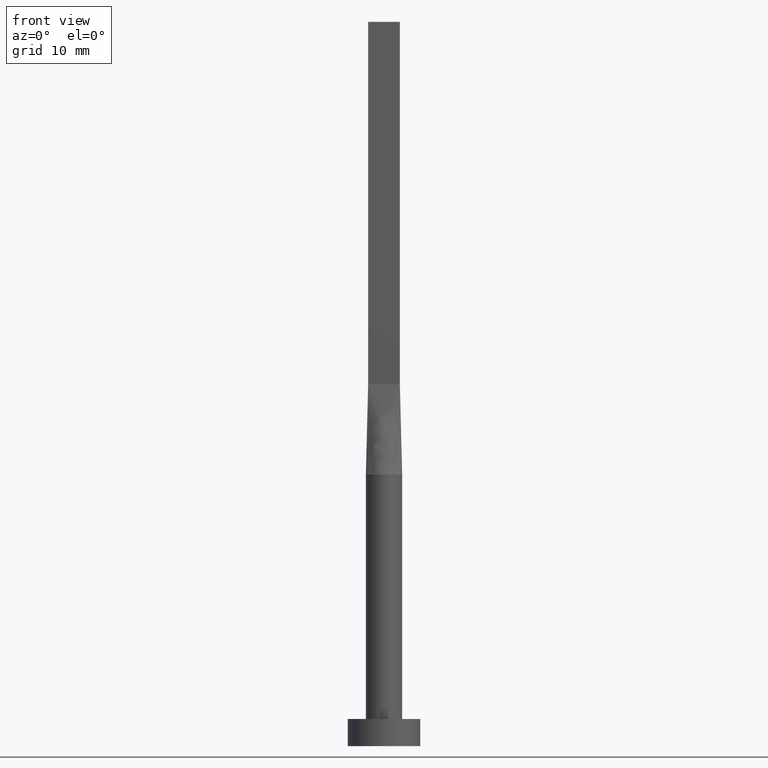
[diagram: clean part render]
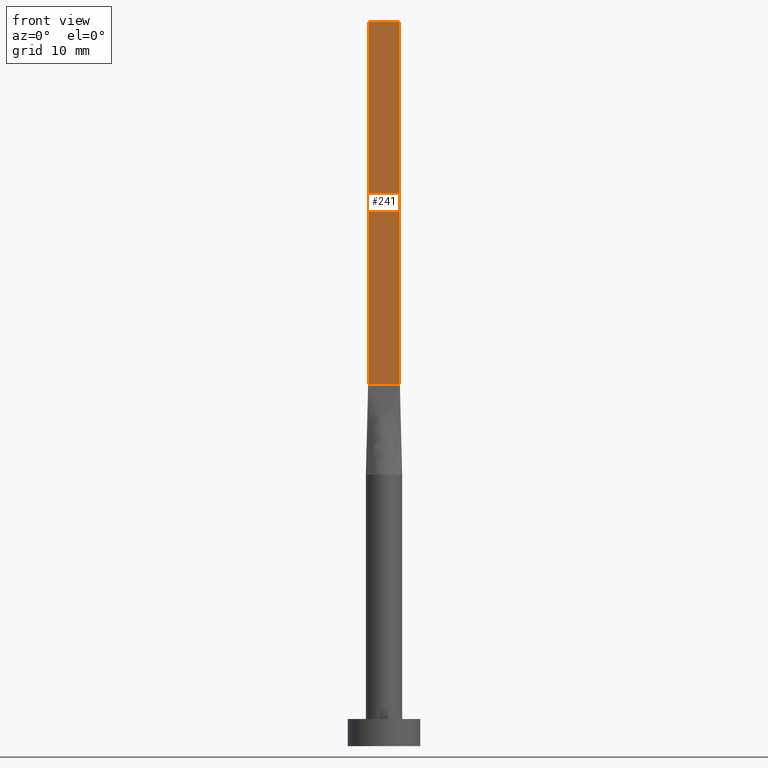
[diagram: same view with one face highlighted and labeled with its STEP entity id]
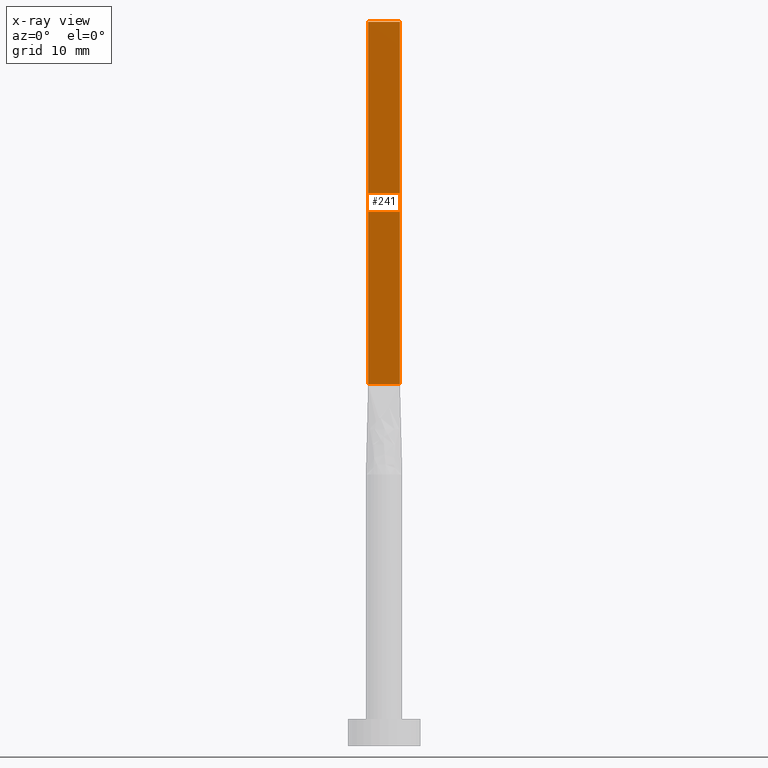
[diagram: x-ray of the same camera — body ghosted, the highlighted face saturated]
A machine part, front view. The second image highlights one B-rep face of the part: STEP entity #241.
The next image is the same camera in x-ray: the body ghosted, the highlighted face saturated — about 0% of this face is hidden behind the body in this view.
In plain terms, the highlighted planar face has unit normal (0, 1, -0).
Its self-contained STEP definition (entity closure, byte-faithful):
#17 = EDGE_CURVE ( 'NONE', #19, #537, #539, .T. ) ;
#19 = VERTEX_POINT ( 'NONE', #126 ) ;
#33 = DIRECTION ( 'NONE',  ( -0.000000000000000000, -0.000000000000000000, -1.000000000000000000 ) ) ;
#37 = DIRECTION ( 'NONE',  ( -0.000000000000000000, -0.000000000000000000, -1.000000000000000000 ) ) ;
#51 = CARTESIAN_POINT ( 'NONE',  ( -1.750000000000000000, -0.4999999999999995559, 40.00000000000000000 ) ) ;
#55 = DIRECTION ( 'NONE',  ( -1.000000000000000000, 6.195440985631454085E-17, 0.000000000000000000 ) ) ;
#76 = CARTESIAN_POINT ( 'NONE',  ( 1.750000000000000000, -0.4999999999999997780, 80.00000000000000000 ) ) ;
#126 = CARTESIAN_POINT ( 'NONE',  ( 1.750000000000000000, -0.4999999999999997780, 80.00000000000000000 ) ) ;
#140 = DIRECTION ( 'NONE',  ( 1.000000000000000000, -6.195440985631454085E-17, 0.000000000000000000 ) ) ;
#151 = VECTOR ( 'NONE', #37, 1000.000000000000000 ) ;
#166 = LINE ( 'NONE', #393, #535 ) ;
#213 = ORIENTED_EDGE ( 'NONE', *, *, #17, .F. ) ;
#225 = ORIENTED_EDGE ( 'NONE', *, *, #312, .T. ) ;
#227 = CARTESIAN_POINT ( 'NONE',  ( 1.750000000000000000, -0.4999999999999997780, 40.00000000000000000 ) ) ;
#238 = LINE ( 'NONE', #369, #506 ) ;
#241 = ADVANCED_FACE ( 'NONE', ( #462 ), #293, .F. ) ;
#244 = CARTESIAN_POINT ( 'NONE',  ( -1.750000000000000000, -0.4999999999999995559, 80.00000000000000000 ) ) ;
#255 = EDGE_LOOP ( 'NONE', ( #225, #213, #517, #512 ) ) ;
#293 = PLANE ( 'NONE',  #437 ) ;
#299 = CARTESIAN_POINT ( 'NONE',  ( -1.750000000000000000, -0.4999999999999995559, 80.00000000000000000 ) ) ;
#312 = EDGE_CURVE ( 'NONE', #493, #537, #166, .T. ) ;
#325 = EDGE_CURVE ( 'NONE', #572, #493, #571, .T. ) ;
#365 = VECTOR ( 'NONE', #33, 1000.000000000000000 ) ;
#369 = CARTESIAN_POINT ( 'NONE',  ( -1.750000000000000000, -0.4999999999999995559, 80.00000000000000000 ) ) ;
#393 = CARTESIAN_POINT ( 'NONE',  ( -1.750000000000000000, -0.4999999999999995559, 40.00000000000000000 ) ) ;
#437 = AXIS2_PLACEMENT_3D ( 'NONE', #244, #468, #55 ) ;
#462 = FACE_OUTER_BOUND ( 'NONE', #255, .T. ) ;
#468 = DIRECTION ( 'NONE',  ( 6.195440985631454085E-17, 1.000000000000000000, -0.000000000000000000 ) ) ;
#493 = VERTEX_POINT ( 'NONE', #51 ) ;
#506 = VECTOR ( 'NONE', #140, 1000.000000000000000 ) ;
#512 = ORIENTED_EDGE ( 'NONE', *, *, #325, .T. ) ;
#517 = ORIENTED_EDGE ( 'NONE', *, *, #540, .F. ) ;
#535 = VECTOR ( 'NONE', #579, 1000.000000000000000 ) ;
#537 = VERTEX_POINT ( 'NONE', #227 ) ;
#539 = LINE ( 'NONE', #76, #151 ) ;
#540 = EDGE_CURVE ( 'NONE', #572, #19, #238, .T. ) ;
#560 = CARTESIAN_POINT ( 'NONE',  ( -1.750000000000000000, -0.4999999999999995559, 80.00000000000000000 ) ) ;
#571 = LINE ( 'NONE', #299, #365 ) ;
#572 = VERTEX_POINT ( 'NONE', #560 ) ;
#579 = DIRECTION ( 'NONE',  ( 1.000000000000000000, -6.195440985631454085E-17, 0.000000000000000000 ) ) ;